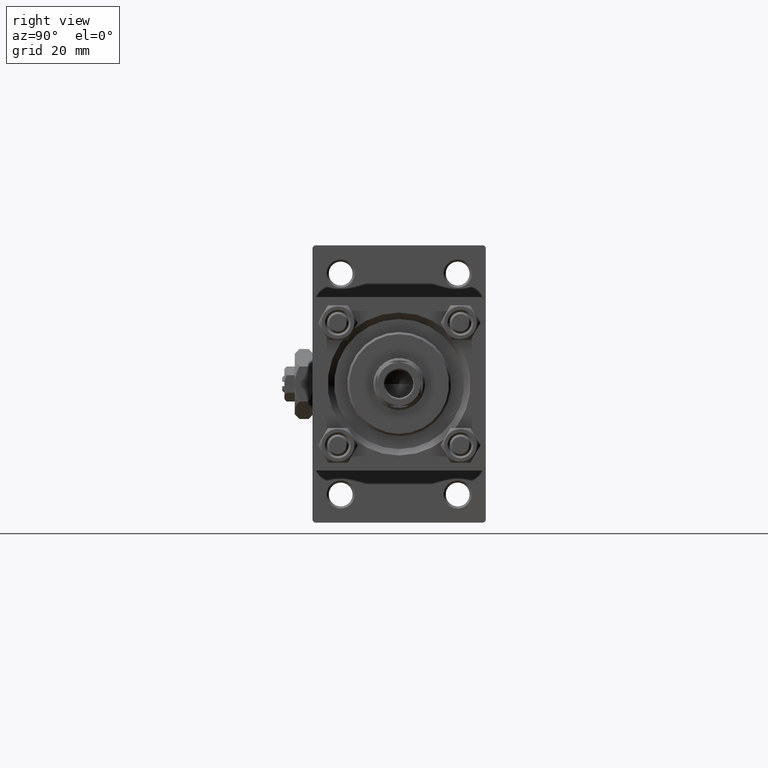
[diagram: clean part render]
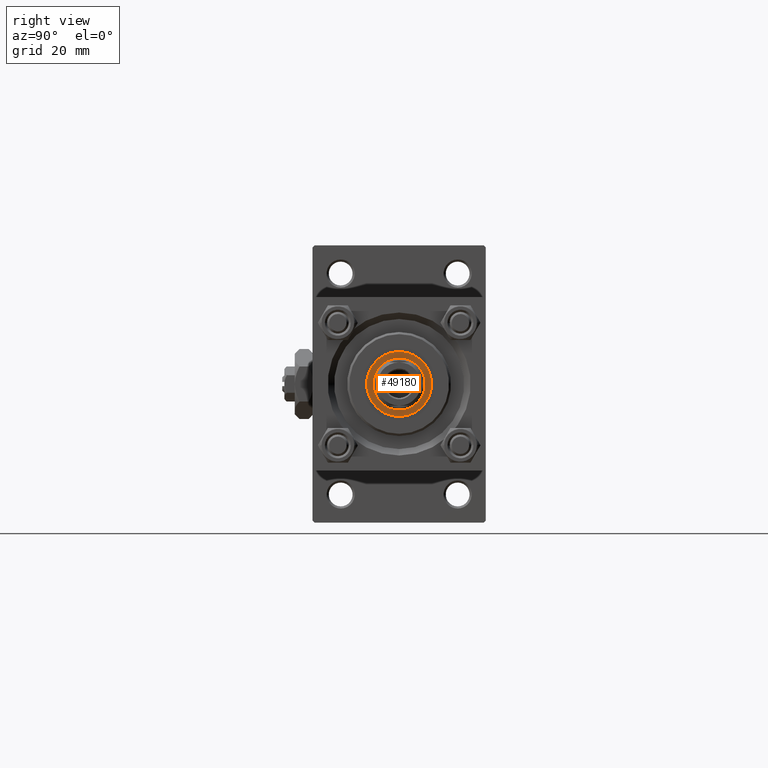
[diagram: same view with one face highlighted and labeled with its STEP entity id]
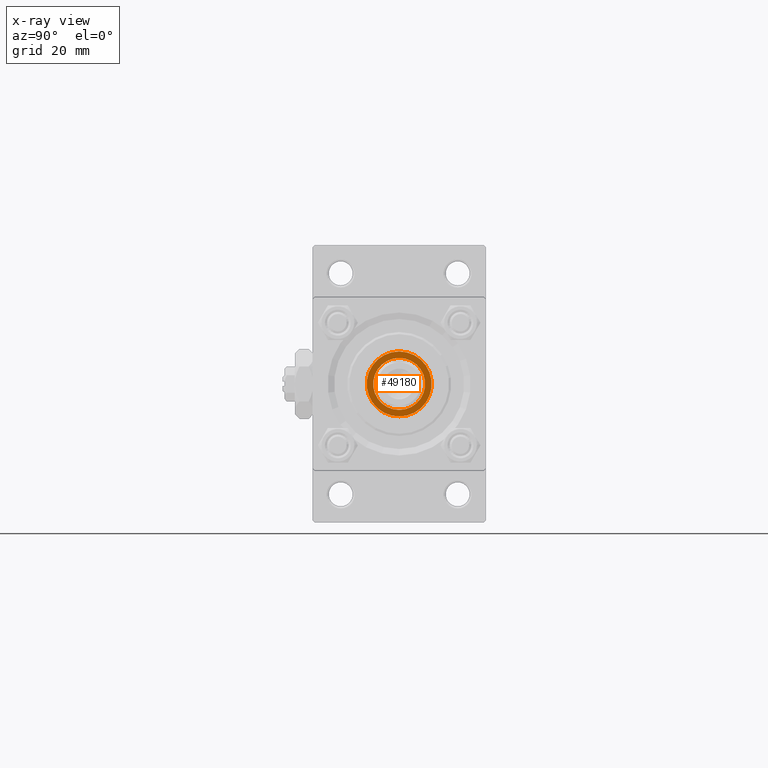
[diagram: x-ray of the same camera — body ghosted, the highlighted face saturated]
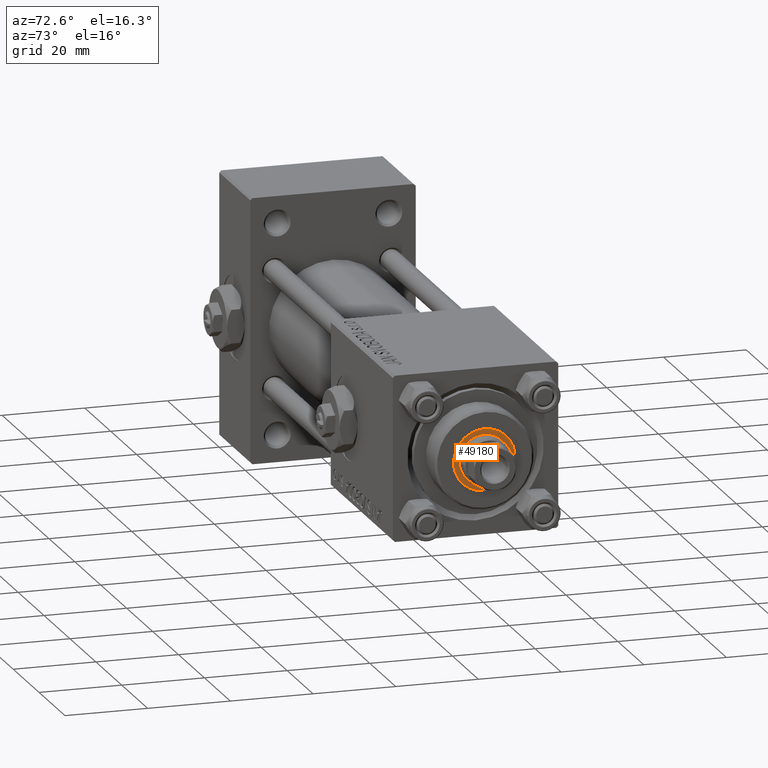
[diagram: same view with one face highlighted and labeled with its STEP entity id]
A machine part, right view. The second image highlights one B-rep face of the part: STEP entity #49180.
The next image is the same camera in x-ray: the body ghosted, the highlighted face saturated — about 0% of this face is hidden behind the body in this view.
A second angle (auxiliary view) of the same face is appended — the face is thin or edge-on in the first view.
In plain terms, the highlighted planar face has unit normal (1, 0, 0).
Its self-contained STEP definition (entity closure, byte-faithful):
#4277 = DIRECTION ( 'NONE',  ( 1.000000000000000000, 0.000000000000000000, 0.000000000000000000 ) ) ;
#5651 = CARTESIAN_POINT ( 'NONE',  ( 0.000000000000000000, 0.000000000000000000, 35.20000000000000284 ) ) ;
#8128 = PLANE ( 'NONE',  #13870 ) ;
#8215 = CARTESIAN_POINT ( 'NONE',  ( 0.000000000000000000, 0.000000000000000000, 35.20000000000000284 ) ) ;
#9111 = VERTEX_POINT ( 'NONE', #43491 ) ;
#9827 = CARTESIAN_POINT ( 'NONE',  ( 0.000000000000000000, 0.000000000000000000, 35.20000000000000284 ) ) ;
#11448 = EDGE_CURVE ( 'NONE', #9111, #13139, #36345, .T. ) ;
#13017 = CIRCLE ( 'NONE', #47378, 6.000000000000000888 ) ;
#13139 = VERTEX_POINT ( 'NONE', #36826 ) ;
#13870 = AXIS2_PLACEMENT_3D ( 'NONE', #38851, #14968, #30978 ) ;
#14968 = DIRECTION ( 'NONE',  ( 0.000000000000000000, 0.000000000000000000, 1.000000000000000000 ) ) ;
#20534 = ORIENTED_EDGE ( 'NONE', *, *, #45102, .T. ) ;
#21884 = DIRECTION ( 'NONE',  ( 1.000000000000000000, 0.000000000000000000, 0.000000000000000000 ) ) ;
#22941 = AXIS2_PLACEMENT_3D ( 'NONE', #9827, #41323, #21884 ) ;
#25061 = DIRECTION ( 'NONE',  ( -0.000000000000000000, -0.000000000000000000, -1.000000000000000000 ) ) ;
#27274 = EDGE_LOOP ( 'NONE', ( #30833, #34782 ) ) ;
#28081 = FACE_BOUND ( 'NONE', #44735, .T. ) ;
#29211 = CARTESIAN_POINT ( 'NONE',  ( -7.500000000000000888, 9.184850993605149917E-16, 35.20000000000000284 ) ) ;
#29269 = DIRECTION ( 'NONE',  ( 0.000000000000000000, 0.000000000000000000, 1.000000000000000000 ) ) ;
#30833 = ORIENTED_EDGE ( 'NONE', *, *, #51866, .T. ) ;
#30978 = DIRECTION ( 'NONE',  ( 1.000000000000000000, 0.000000000000000000, -0.000000000000000000 ) ) ;
#32365 = DIRECTION ( 'NONE',  ( 0.000000000000000000, 0.000000000000000000, 1.000000000000000000 ) ) ;
#33712 = DIRECTION ( 'NONE',  ( 1.000000000000000000, 0.000000000000000000, 0.000000000000000000 ) ) ;
#34100 = CIRCLE ( 'NONE', #40807, 7.500000000000000888 ) ;
#34782 = ORIENTED_EDGE ( 'NONE', *, *, #45944, .T. ) ;
#36345 = CIRCLE ( 'NONE', #22941, 6.000000000000000888 ) ;
#36805 = CARTESIAN_POINT ( 'NONE',  ( 7.500000000000000888, 0.000000000000000000, 35.20000000000000284 ) ) ;
#36826 = CARTESIAN_POINT ( 'NONE',  ( 6.000000000000000888, 0.000000000000000000, 35.20000000000000284 ) ) ;
#37404 = DIRECTION ( 'NONE',  ( 1.000000000000000000, 0.000000000000000000, 0.000000000000000000 ) ) ;
#38851 = CARTESIAN_POINT ( 'NONE',  ( 0.000000000000000000, 0.000000000000000000, 35.20000000000000284 ) ) ;
#40334 = ORIENTED_EDGE ( 'NONE', *, *, #11448, .T. ) ;
#40699 = AXIS2_PLACEMENT_3D ( 'NONE', #5651, #29269, #33712 ) ;
#40807 = AXIS2_PLACEMENT_3D ( 'NONE', #8215, #32365, #4277 ) ;
#40892 = VERTEX_POINT ( 'NONE', #36805 ) ;
#41323 = DIRECTION ( 'NONE',  ( -0.000000000000000000, -0.000000000000000000, -1.000000000000000000 ) ) ;
#43491 = CARTESIAN_POINT ( 'NONE',  ( -6.000000000000000888, 7.347880794884119736E-16, 35.20000000000000284 ) ) ;
#44735 = EDGE_LOOP ( 'NONE', ( #20534, #40334 ) ) ;
#45102 = EDGE_CURVE ( 'NONE', #13139, #9111, #13017, .T. ) ;
#45534 = CARTESIAN_POINT ( 'NONE',  ( 0.000000000000000000, 0.000000000000000000, 35.20000000000000284 ) ) ;
#45944 = EDGE_CURVE ( 'NONE', #46350, #40892, #46597, .T. ) ;
#46350 = VERTEX_POINT ( 'NONE', #29211 ) ;
#46597 = CIRCLE ( 'NONE', #40699, 7.500000000000000888 ) ;
#47378 = AXIS2_PLACEMENT_3D ( 'NONE', #45534, #25061, #37404 ) ;
#48018 = FACE_OUTER_BOUND ( 'NONE', #27274, .T. ) ;
#49180 = ADVANCED_FACE ( 'NONE', ( #48018, #28081 ), #8128, .T. ) ;
#51866 = EDGE_CURVE ( 'NONE', #40892, #46350, #34100, .T. ) ;